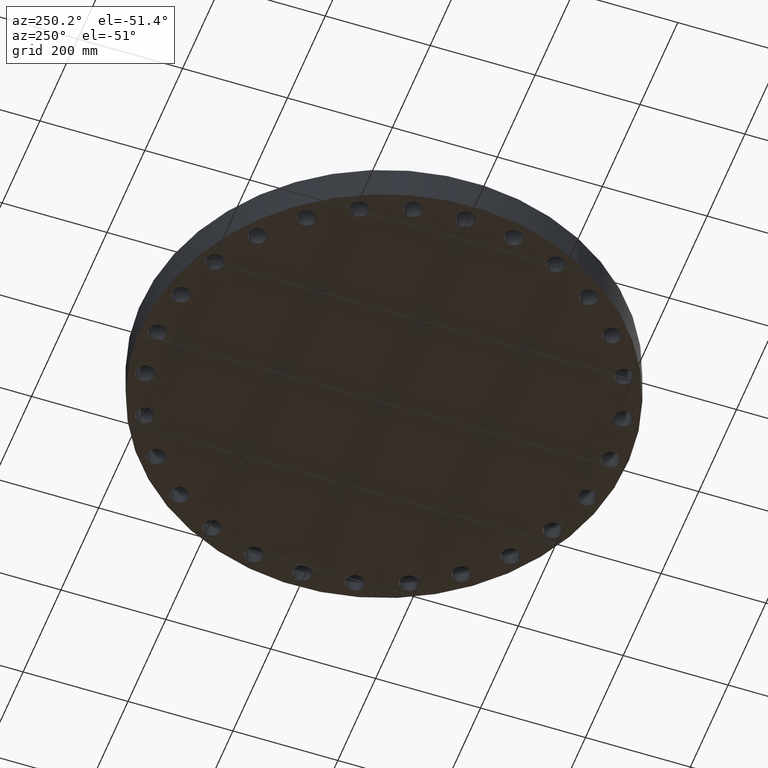
[diagram: clean part render]
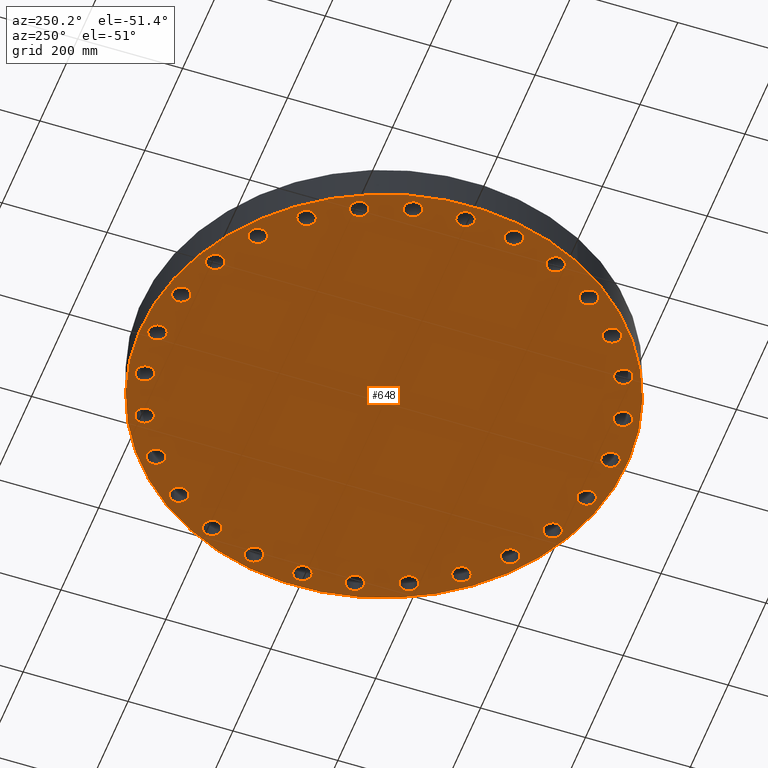
[diagram: same view with one face highlighted and labeled with its STEP entity id]
A machine part, auxiliary view. The second image highlights one B-rep face of the part: STEP entity #648.
In plain terms, the highlighted planar face has unit normal (0, 0, 1).
Its self-contained STEP definition (entity closure, byte-faithful):
#51=AXIS2_PLACEMENT_3D('Circle Axis2P3D',#49,#50,$) ;
#77=AXIS2_PLACEMENT_3D('Circle Axis2P3D',#75,#76,$) ;
#122=AXIS2_PLACEMENT_3D('Circle Axis2P3D',#120,#121,$) ;
#139=AXIS2_PLACEMENT_3D('Circle Axis2P3D',#137,#138,$) ;
#152=AXIS2_PLACEMENT_3D('Plane Axis2P3D',#149,#150,#151) ;
#164=AXIS2_PLACEMENT_3D('Circle Axis2P3D',#162,#163,$) ;
#173=AXIS2_PLACEMENT_3D('Circle Axis2P3D',#171,#172,$) ;
#182=AXIS2_PLACEMENT_3D('Circle Axis2P3D',#180,#181,$) ;
#191=AXIS2_PLACEMENT_3D('Circle Axis2P3D',#189,#190,$) ;
#200=AXIS2_PLACEMENT_3D('Circle Axis2P3D',#198,#199,$) ;
#209=AXIS2_PLACEMENT_3D('Circle Axis2P3D',#207,#208,$) ;
#218=AXIS2_PLACEMENT_3D('Circle Axis2P3D',#216,#217,$) ;
#227=AXIS2_PLACEMENT_3D('Circle Axis2P3D',#225,#226,$) ;
#236=AXIS2_PLACEMENT_3D('Circle Axis2P3D',#234,#235,$) ;
#245=AXIS2_PLACEMENT_3D('Circle Axis2P3D',#243,#244,$) ;
#254=AXIS2_PLACEMENT_3D('Circle Axis2P3D',#252,#253,$) ;
#263=AXIS2_PLACEMENT_3D('Circle Axis2P3D',#261,#262,$) ;
#272=AXIS2_PLACEMENT_3D('Circle Axis2P3D',#270,#271,$) ;
#281=AXIS2_PLACEMENT_3D('Circle Axis2P3D',#279,#280,$) ;
#290=AXIS2_PLACEMENT_3D('Circle Axis2P3D',#288,#289,$) ;
#299=AXIS2_PLACEMENT_3D('Circle Axis2P3D',#297,#298,$) ;
#308=AXIS2_PLACEMENT_3D('Circle Axis2P3D',#306,#307,$) ;
#317=AXIS2_PLACEMENT_3D('Circle Axis2P3D',#315,#316,$) ;
#326=AXIS2_PLACEMENT_3D('Circle Axis2P3D',#324,#325,$) ;
#335=AXIS2_PLACEMENT_3D('Circle Axis2P3D',#333,#334,$) ;
#344=AXIS2_PLACEMENT_3D('Circle Axis2P3D',#342,#343,$) ;
#353=AXIS2_PLACEMENT_3D('Circle Axis2P3D',#351,#352,$) ;
#362=AXIS2_PLACEMENT_3D('Circle Axis2P3D',#360,#361,$) ;
#371=AXIS2_PLACEMENT_3D('Circle Axis2P3D',#369,#370,$) ;
#380=AXIS2_PLACEMENT_3D('Circle Axis2P3D',#378,#379,$) ;
#389=AXIS2_PLACEMENT_3D('Circle Axis2P3D',#387,#388,$) ;
#398=AXIS2_PLACEMENT_3D('Circle Axis2P3D',#396,#397,$) ;
#407=AXIS2_PLACEMENT_3D('Circle Axis2P3D',#405,#406,$) ;
#416=AXIS2_PLACEMENT_3D('Circle Axis2P3D',#414,#415,$) ;
#425=AXIS2_PLACEMENT_3D('Circle Axis2P3D',#423,#424,$) ;
#434=AXIS2_PLACEMENT_3D('Circle Axis2P3D',#432,#433,$) ;
#443=AXIS2_PLACEMENT_3D('Circle Axis2P3D',#441,#442,$) ;
#452=AXIS2_PLACEMENT_3D('Circle Axis2P3D',#450,#451,$) ;
#461=AXIS2_PLACEMENT_3D('Circle Axis2P3D',#459,#460,$) ;
#470=AXIS2_PLACEMENT_3D('Circle Axis2P3D',#468,#469,$) ;
#479=AXIS2_PLACEMENT_3D('Circle Axis2P3D',#477,#478,$) ;
#488=AXIS2_PLACEMENT_3D('Circle Axis2P3D',#486,#487,$) ;
#497=AXIS2_PLACEMENT_3D('Circle Axis2P3D',#495,#496,$) ;
#506=AXIS2_PLACEMENT_3D('Circle Axis2P3D',#504,#505,$) ;
#515=AXIS2_PLACEMENT_3D('Circle Axis2P3D',#513,#514,$) ;
#524=AXIS2_PLACEMENT_3D('Circle Axis2P3D',#522,#523,$) ;
#533=AXIS2_PLACEMENT_3D('Circle Axis2P3D',#531,#532,$) ;
#542=AXIS2_PLACEMENT_3D('Circle Axis2P3D',#540,#541,$) ;
#551=AXIS2_PLACEMENT_3D('Circle Axis2P3D',#549,#550,$) ;
#560=AXIS2_PLACEMENT_3D('Circle Axis2P3D',#558,#559,$) ;
#569=AXIS2_PLACEMENT_3D('Circle Axis2P3D',#567,#568,$) ;
#578=AXIS2_PLACEMENT_3D('Circle Axis2P3D',#576,#577,$) ;
#587=AXIS2_PLACEMENT_3D('Circle Axis2P3D',#585,#586,$) ;
#596=AXIS2_PLACEMENT_3D('Circle Axis2P3D',#594,#595,$) ;
#605=AXIS2_PLACEMENT_3D('Circle Axis2P3D',#603,#604,$) ;
#614=AXIS2_PLACEMENT_3D('Circle Axis2P3D',#612,#613,$) ;
#623=AXIS2_PLACEMENT_3D('Circle Axis2P3D',#621,#622,$) ;
#632=AXIS2_PLACEMENT_3D('Circle Axis2P3D',#630,#631,$) ;
#641=AXIS2_PLACEMENT_3D('Circle Axis2P3D',#639,#640,$) ;
#44=CARTESIAN_POINT('Vertex',(16.3966619888,0.329605057792,0.)) ;
#49=CARTESIAN_POINT('Axis2P3D Location',(17.0000000001,0.,0.)) ;
#53=CARTESIAN_POINT('Vertex',(17.6033380114,-0.329605057792,0.)) ;
#75=CARTESIAN_POINT('Axis2P3D Location',(17.0000000001,0.,0.)) ;
#101=CARTESIAN_POINT('Vertex',(16.0158817546,8.74951607956,0.)) ;
#117=CARTESIAN_POINT('Vertex',(-16.0158817546,-8.74951607956,0.)) ;
#120=CARTESIAN_POINT('Axis2P3D Location',(0.,0.,0.)) ;
#137=CARTESIAN_POINT('Axis2P3D Location',(0.,0.,0.)) ;
#149=CARTESIAN_POINT('Axis2P3D Location',(0.,0.,0.)) ;
#162=CARTESIAN_POINT('Axis2P3D Location',(16.5737745072,3.78285587727,0.)) ;
#166=CARTESIAN_POINT('Vertex',(15.9122194142,3.96994171034,0.)) ;
#168=CARTESIAN_POINT('Vertex',(17.2353296002,3.5957700442,0.)) ;
#171=CARTESIAN_POINT('Axis2P3D Location',(16.5737745072,3.78285587727,0.)) ;
#180=CARTESIAN_POINT('Axis2P3D Location',(15.3164707544,7.37602356503,0.)) ;
#184=CARTESIAN_POINT('Vertex',(14.6298717145,7.41120890851,0.)) ;
#186=CARTESIAN_POINT('Vertex',(16.0030697943,7.34083822155,0.)) ;
#189=CARTESIAN_POINT('Axis2P3D Location',(15.3164707544,7.37602356503,0.)) ;
#198=CARTESIAN_POINT('Axis2P3D Location',(13.291135202,10.5993266316,0.)) ;
#202=CARTESIAN_POINT('Vertex',(12.613921158,10.4808471455,0.)) ;
#204=CARTESIAN_POINT('Vertex',(13.968349246,10.7178061178,0.)) ;
#207=CARTESIAN_POINT('Axis2P3D Location',(13.291135202,10.5993266316,0.)) ;
#216=CARTESIAN_POINT('Axis2P3D Location',(10.5993266316,13.291135202,0.)) ;
#220=CARTESIAN_POINT('Vertex',(9.96545592356,13.0249319424,0.)) ;
#222=CARTESIAN_POINT('Vertex',(11.2331973397,13.5573384616,0.)) ;
#225=CARTESIAN_POINT('Axis2P3D Location',(10.5993266316,13.291135202,0.)) ;
#234=CARTESIAN_POINT('Axis2P3D Location',(7.37602356503,15.3164707544,0.)) ;
#238=CARTESIAN_POINT('Vertex',(6.81728111696,14.9158922643,0.)) ;
#240=CARTESIAN_POINT('Vertex',(7.9347660131,15.7170492445,0.)) ;
#243=CARTESIAN_POINT('Axis2P3D Location',(7.37602356503,15.3164707544,0.)) ;
#252=CARTESIAN_POINT('Axis2P3D Location',(3.78285587727,16.5737745072,0.)) ;
#256=CARTESIAN_POINT('Vertex',(3.32725936867,16.0589074648,0.)) ;
#258=CARTESIAN_POINT('Vertex',(4.23845238588,17.0886415496,0.)) ;
#261=CARTESIAN_POINT('Axis2P3D Location',(3.78285587727,16.5737745072,0.)) ;
#270=CARTESIAN_POINT('Axis2P3D Location',(2.30786518505E-015,17.0000000001,0.)) ;
#274=CARTESIAN_POINT('Vertex',(-0.329605057792,16.3966619888,0.)) ;
#276=CARTESIAN_POINT('Vertex',(0.329605057792,17.6033380114,0.)) ;
#279=CARTESIAN_POINT('Axis2P3D Location',(3.35689481461E-015,17.0000000001,0.)) ;
#288=CARTESIAN_POINT('Axis2P3D Location',(-3.78285587727,16.5737745072,0.)) ;
#292=CARTESIAN_POINT('Vertex',(-3.96994171034,15.9122194142,0.)) ;
#294=CARTESIAN_POINT('Vertex',(-3.5957700442,17.2353296002,0.)) ;
#297=CARTESIAN_POINT('Axis2P3D Location',(-3.78285587727,16.5737745072,0.)) ;
#306=CARTESIAN_POINT('Axis2P3D Location',(-7.37602356503,15.3164707544,0.)) ;
#310=CARTESIAN_POINT('Vertex',(-7.41120890851,14.6298717145,0.)) ;
#312=CARTESIAN_POINT('Vertex',(-7.34083822155,16.0030697943,0.)) ;
#315=CARTESIAN_POINT('Axis2P3D Location',(-7.37602356503,15.3164707544,0.)) ;
#324=CARTESIAN_POINT('Axis2P3D Location',(-10.5993266316,13.291135202,0.)) ;
#328=CARTESIAN_POINT('Vertex',(-10.4808471455,12.613921158,0.)) ;
#330=CARTESIAN_POINT('Vertex',(-10.7178061178,13.968349246,0.)) ;
#333=CARTESIAN_POINT('Axis2P3D Location',(-10.5993266316,13.291135202,0.)) ;
#342=CARTESIAN_POINT('Axis2P3D Location',(-13.291135202,10.5993266316,0.)) ;
#346=CARTESIAN_POINT('Vertex',(-13.0249319424,9.96545592356,0.)) ;
#348=CARTESIAN_POINT('Vertex',(-13.5573384616,11.2331973397,0.)) ;
#351=CARTESIAN_POINT('Axis2P3D Location',(-13.291135202,10.5993266316,0.)) ;
#360=CARTESIAN_POINT('Axis2P3D Location',(-15.3164707544,7.37602356503,0.)) ;
#364=CARTESIAN_POINT('Vertex',(-14.9158922643,6.81728111696,0.)) ;
#366=CARTESIAN_POINT('Vertex',(-15.7170492445,7.9347660131,0.)) ;
#369=CARTESIAN_POINT('Axis2P3D Location',(-15.3164707544,7.37602356503,0.)) ;
#378=CARTESIAN_POINT('Axis2P3D Location',(-16.5737745072,3.78285587727,0.)) ;
#382=CARTESIAN_POINT('Vertex',(-16.0589074648,3.32725936867,0.)) ;
#384=CARTESIAN_POINT('Vertex',(-17.0886415496,4.23845238588,0.)) ;
#387=CARTESIAN_POINT('Axis2P3D Location',(-16.5737745072,3.78285587727,0.)) ;
#396=CARTESIAN_POINT('Axis2P3D Location',(-17.0000000001,8.74191357973E-015,0.)) ;
#400=CARTESIAN_POINT('Vertex',(-16.3966619888,-0.329605057792,0.)) ;
#402=CARTESIAN_POINT('Vertex',(-17.6033380114,0.329605057792,0.)) ;
#405=CARTESIAN_POINT('Axis2P3D Location',(-17.0000000001,1.07700375302E-014,0.)) ;
#414=CARTESIAN_POINT('Axis2P3D Location',(-16.5737745072,-3.78285587727,0.)) ;
#418=CARTESIAN_POINT('Vertex',(-15.9122194142,-3.96994171034,0.)) ;
#420=CARTESIAN_POINT('Vertex',(-17.2353296002,-3.5957700442,0.)) ;
#423=CARTESIAN_POINT('Axis2P3D Location',(-16.5737745072,-3.78285587727,0.)) ;
#432=CARTESIAN_POINT('Axis2P3D Location',(-15.3164707544,-7.37602356503,0.)) ;
#436=CARTESIAN_POINT('Vertex',(-14.6298717145,-7.41120890851,0.)) ;
#438=CARTESIAN_POINT('Vertex',(-16.0030697943,-7.34083822155,0.)) ;
#441=CARTESIAN_POINT('Axis2P3D Location',(-15.3164707544,-7.37602356503,0.)) ;
#450=CARTESIAN_POINT('Axis2P3D Location',(-13.291135202,-10.5993266316,0.)) ;
#454=CARTESIAN_POINT('Vertex',(-12.613921158,-10.4808471455,0.)) ;
#456=CARTESIAN_POINT('Vertex',(-13.968349246,-10.7178061178,0.)) ;
#459=CARTESIAN_POINT('Axis2P3D Location',(-13.291135202,-10.5993266316,0.)) ;
#468=CARTESIAN_POINT('Axis2P3D Location',(-10.5993266316,-13.291135202,0.)) ;
#472=CARTESIAN_POINT('Vertex',(-9.96545592356,-13.0249319424,0.)) ;
#474=CARTESIAN_POINT('Vertex',(-11.2331973397,-13.5573384616,0.)) ;
#477=CARTESIAN_POINT('Axis2P3D Location',(-10.5993266316,-13.291135202,0.)) ;
#486=CARTESIAN_POINT('Axis2P3D Location',(-7.37602356503,-15.3164707544,0.)) ;
#490=CARTESIAN_POINT('Vertex',(-6.81728111696,-14.9158922643,0.)) ;
#492=CARTESIAN_POINT('Vertex',(-7.9347660131,-15.7170492445,0.)) ;
#495=CARTESIAN_POINT('Axis2P3D Location',(-7.37602356503,-15.3164707544,0.)) ;
#504=CARTESIAN_POINT('Axis2P3D Location',(-3.78285587727,-16.5737745072,0.)) ;
#508=CARTESIAN_POINT('Vertex',(-3.32725936867,-16.0589074648,0.)) ;
#510=CARTESIAN_POINT('Vertex',(-4.23845238588,-17.0886415496,0.)) ;
#513=CARTESIAN_POINT('Axis2P3D Location',(-3.78285587727,-16.5737745072,0.)) ;
#522=CARTESIAN_POINT('Axis2P3D Location',(-6.2941777774E-016,-17.0000000001,0.)) ;
#526=CARTESIAN_POINT('Vertex',(0.329605057792,-16.3966619888,0.)) ;
#528=CARTESIAN_POINT('Vertex',(-0.329605057792,-17.6033380114,0.)) ;
#531=CARTESIAN_POINT('Axis2P3D Location',(-1.74838271595E-015,-17.0000000001,0.)) ;
#540=CARTESIAN_POINT('Axis2P3D Location',(3.78285587727,-16.5737745072,0.)) ;
#544=CARTESIAN_POINT('Vertex',(3.96994171034,-15.9122194142,0.)) ;
#546=CARTESIAN_POINT('Vertex',(3.5957700442,-17.2353296002,0.)) ;
#549=CARTESIAN_POINT('Axis2P3D Location',(3.78285587727,-16.5737745072,0.)) ;
#558=CARTESIAN_POINT('Axis2P3D Location',(7.37602356503,-15.3164707544,0.)) ;
#562=CARTESIAN_POINT('Vertex',(7.41120890851,-14.6298717145,0.)) ;
#564=CARTESIAN_POINT('Vertex',(7.34083822155,-16.0030697943,0.)) ;
#567=CARTESIAN_POINT('Axis2P3D Location',(7.37602356503,-15.3164707544,0.)) ;
#576=CARTESIAN_POINT('Axis2P3D Location',(10.5993266316,-13.291135202,0.)) ;
#580=CARTESIAN_POINT('Vertex',(10.4808471455,-12.613921158,0.)) ;
#582=CARTESIAN_POINT('Vertex',(10.7178061178,-13.968349246,0.)) ;
#585=CARTESIAN_POINT('Axis2P3D Location',(10.5993266316,-13.291135202,0.)) ;
#594=CARTESIAN_POINT('Axis2P3D Location',(13.291135202,-10.5993266316,0.)) ;
#598=CARTESIAN_POINT('Vertex',(13.0249319424,-9.96545592356,0.)) ;
#600=CARTESIAN_POINT('Vertex',(13.5573384616,-11.2331973397,0.)) ;
#603=CARTESIAN_POINT('Axis2P3D Location',(13.291135202,-10.5993266316,0.)) ;
#612=CARTESIAN_POINT('Axis2P3D Location',(15.3164707544,-7.37602356503,0.)) ;
#616=CARTESIAN_POINT('Vertex',(14.9158922643,-6.81728111696,0.)) ;
#618=CARTESIAN_POINT('Vertex',(15.7170492445,-7.9347660131,0.)) ;
#621=CARTESIAN_POINT('Axis2P3D Location',(15.3164707544,-7.37602356503,0.)) ;
#630=CARTESIAN_POINT('Axis2P3D Location',(16.5737745072,-3.78285587727,0.)) ;
#634=CARTESIAN_POINT('Vertex',(16.0589074648,-3.32725936867,0.)) ;
#636=CARTESIAN_POINT('Vertex',(17.0886415496,-4.23845238588,0.)) ;
#639=CARTESIAN_POINT('Axis2P3D Location',(16.5737745072,-3.78285587727,0.)) ;
#50=DIRECTION('Axis2P3D Direction',(0.,-0.,-0.0393700787402)) ;
#76=DIRECTION('Axis2P3D Direction',(0.,-0.,-0.0393700787402)) ;
#121=DIRECTION('Axis2P3D Direction',(0.,0.,0.0393700787402)) ;
#138=DIRECTION('Axis2P3D Direction',(0.,0.,0.0393700787402)) ;
#150=DIRECTION('Axis2P3D Direction',(0.,0.,0.0393700787402)) ;
#151=DIRECTION('Axis2P3D XDirection',(0.0393700787402,0.,0.)) ;
#163=DIRECTION('Axis2P3D Direction',(0.,0.,0.0393700787402)) ;
#172=DIRECTION('Axis2P3D Direction',(0.,0.,0.0393700787402)) ;
#181=DIRECTION('Axis2P3D Direction',(0.,0.,0.0393700787402)) ;
#190=DIRECTION('Axis2P3D Direction',(0.,0.,0.0393700787402)) ;
#199=DIRECTION('Axis2P3D Direction',(0.,0.,0.0393700787402)) ;
#208=DIRECTION('Axis2P3D Direction',(0.,0.,0.0393700787402)) ;
#217=DIRECTION('Axis2P3D Direction',(0.,0.,0.0393700787402)) ;
#226=DIRECTION('Axis2P3D Direction',(0.,0.,0.0393700787402)) ;
#235=DIRECTION('Axis2P3D Direction',(0.,0.,0.0393700787402)) ;
#244=DIRECTION('Axis2P3D Direction',(0.,0.,0.0393700787402)) ;
#253=DIRECTION('Axis2P3D Direction',(0.,0.,0.0393700787402)) ;
#262=DIRECTION('Axis2P3D Direction',(0.,0.,0.0393700787402)) ;
#271=DIRECTION('Axis2P3D Direction',(0.,0.,0.0393700787402)) ;
#280=DIRECTION('Axis2P3D Direction',(0.,0.,0.0393700787402)) ;
#289=DIRECTION('Axis2P3D Direction',(0.,0.,0.0393700787402)) ;
#298=DIRECTION('Axis2P3D Direction',(0.,0.,0.0393700787402)) ;
#307=DIRECTION('Axis2P3D Direction',(0.,0.,0.0393700787402)) ;
#316=DIRECTION('Axis2P3D Direction',(0.,0.,0.0393700787402)) ;
#325=DIRECTION('Axis2P3D Direction',(0.,0.,0.0393700787402)) ;
#334=DIRECTION('Axis2P3D Direction',(0.,0.,0.0393700787402)) ;
#343=DIRECTION('Axis2P3D Direction',(0.,0.,0.0393700787402)) ;
#352=DIRECTION('Axis2P3D Direction',(0.,0.,0.0393700787402)) ;
#361=DIRECTION('Axis2P3D Direction',(0.,0.,0.0393700787402)) ;
#370=DIRECTION('Axis2P3D Direction',(0.,0.,0.0393700787402)) ;
#379=DIRECTION('Axis2P3D Direction',(0.,0.,0.0393700787402)) ;
#388=DIRECTION('Axis2P3D Direction',(0.,0.,0.0393700787402)) ;
#397=DIRECTION('Axis2P3D Direction',(0.,0.,0.0393700787402)) ;
#406=DIRECTION('Axis2P3D Direction',(0.,0.,0.0393700787402)) ;
#415=DIRECTION('Axis2P3D Direction',(0.,0.,0.0393700787402)) ;
#424=DIRECTION('Axis2P3D Direction',(0.,0.,0.0393700787402)) ;
#433=DIRECTION('Axis2P3D Direction',(0.,0.,0.0393700787402)) ;
#442=DIRECTION('Axis2P3D Direction',(0.,0.,0.0393700787402)) ;
#451=DIRECTION('Axis2P3D Direction',(0.,0.,0.0393700787402)) ;
#460=DIRECTION('Axis2P3D Direction',(0.,0.,0.0393700787402)) ;
#469=DIRECTION('Axis2P3D Direction',(0.,0.,0.0393700787402)) ;
#478=DIRECTION('Axis2P3D Direction',(0.,0.,0.0393700787402)) ;
#487=DIRECTION('Axis2P3D Direction',(0.,0.,0.0393700787402)) ;
#496=DIRECTION('Axis2P3D Direction',(0.,0.,0.0393700787402)) ;
#505=DIRECTION('Axis2P3D Direction',(0.,0.,0.0393700787402)) ;
#514=DIRECTION('Axis2P3D Direction',(0.,0.,0.0393700787402)) ;
#523=DIRECTION('Axis2P3D Direction',(0.,0.,0.0393700787402)) ;
#532=DIRECTION('Axis2P3D Direction',(0.,0.,0.0393700787402)) ;
#541=DIRECTION('Axis2P3D Direction',(0.,0.,0.0393700787402)) ;
#550=DIRECTION('Axis2P3D Direction',(0.,0.,0.0393700787402)) ;
#559=DIRECTION('Axis2P3D Direction',(0.,0.,0.0393700787402)) ;
#568=DIRECTION('Axis2P3D Direction',(0.,0.,0.0393700787402)) ;
#577=DIRECTION('Axis2P3D Direction',(0.,0.,0.0393700787402)) ;
#586=DIRECTION('Axis2P3D Direction',(0.,0.,0.0393700787402)) ;
#595=DIRECTION('Axis2P3D Direction',(0.,0.,0.0393700787402)) ;
#604=DIRECTION('Axis2P3D Direction',(0.,0.,0.0393700787402)) ;
#613=DIRECTION('Axis2P3D Direction',(0.,0.,0.0393700787402)) ;
#622=DIRECTION('Axis2P3D Direction',(0.,0.,0.0393700787402)) ;
#631=DIRECTION('Axis2P3D Direction',(0.,0.,0.0393700787402)) ;
#640=DIRECTION('Axis2P3D Direction',(0.,0.,0.0393700787402)) ;
#155=ORIENTED_EDGE('',*,*,#124,.F.) ;
#156=ORIENTED_EDGE('',*,*,#141,.F.) ;
#159=ORIENTED_EDGE('',*,*,#55,.T.) ;
#160=ORIENTED_EDGE('',*,*,#79,.T.) ;
#177=ORIENTED_EDGE('',*,*,#170,.T.) ;
#178=ORIENTED_EDGE('',*,*,#175,.T.) ;
#195=ORIENTED_EDGE('',*,*,#188,.T.) ;
#196=ORIENTED_EDGE('',*,*,#193,.T.) ;
#213=ORIENTED_EDGE('',*,*,#206,.T.) ;
#214=ORIENTED_EDGE('',*,*,#211,.T.) ;
#231=ORIENTED_EDGE('',*,*,#224,.T.) ;
#232=ORIENTED_EDGE('',*,*,#229,.T.) ;
#249=ORIENTED_EDGE('',*,*,#242,.T.) ;
#250=ORIENTED_EDGE('',*,*,#247,.T.) ;
#267=ORIENTED_EDGE('',*,*,#260,.T.) ;
#268=ORIENTED_EDGE('',*,*,#265,.T.) ;
#285=ORIENTED_EDGE('',*,*,#278,.T.) ;
#286=ORIENTED_EDGE('',*,*,#283,.T.) ;
#303=ORIENTED_EDGE('',*,*,#296,.T.) ;
#304=ORIENTED_EDGE('',*,*,#301,.T.) ;
#321=ORIENTED_EDGE('',*,*,#314,.T.) ;
#322=ORIENTED_EDGE('',*,*,#319,.T.) ;
#339=ORIENTED_EDGE('',*,*,#332,.T.) ;
#340=ORIENTED_EDGE('',*,*,#337,.T.) ;
#357=ORIENTED_EDGE('',*,*,#350,.T.) ;
#358=ORIENTED_EDGE('',*,*,#355,.T.) ;
#375=ORIENTED_EDGE('',*,*,#368,.T.) ;
#376=ORIENTED_EDGE('',*,*,#373,.T.) ;
#393=ORIENTED_EDGE('',*,*,#386,.T.) ;
#394=ORIENTED_EDGE('',*,*,#391,.T.) ;
#411=ORIENTED_EDGE('',*,*,#404,.T.) ;
#412=ORIENTED_EDGE('',*,*,#409,.T.) ;
#429=ORIENTED_EDGE('',*,*,#422,.T.) ;
#430=ORIENTED_EDGE('',*,*,#427,.T.) ;
#447=ORIENTED_EDGE('',*,*,#440,.T.) ;
#448=ORIENTED_EDGE('',*,*,#445,.T.) ;
#465=ORIENTED_EDGE('',*,*,#458,.T.) ;
#466=ORIENTED_EDGE('',*,*,#463,.T.) ;
#483=ORIENTED_EDGE('',*,*,#476,.T.) ;
#484=ORIENTED_EDGE('',*,*,#481,.T.) ;
#501=ORIENTED_EDGE('',*,*,#494,.T.) ;
#502=ORIENTED_EDGE('',*,*,#499,.T.) ;
#519=ORIENTED_EDGE('',*,*,#512,.T.) ;
#520=ORIENTED_EDGE('',*,*,#517,.T.) ;
#537=ORIENTED_EDGE('',*,*,#530,.T.) ;
#538=ORIENTED_EDGE('',*,*,#535,.T.) ;
#555=ORIENTED_EDGE('',*,*,#548,.T.) ;
#556=ORIENTED_EDGE('',*,*,#553,.T.) ;
#573=ORIENTED_EDGE('',*,*,#566,.T.) ;
#574=ORIENTED_EDGE('',*,*,#571,.T.) ;
#591=ORIENTED_EDGE('',*,*,#584,.T.) ;
#592=ORIENTED_EDGE('',*,*,#589,.T.) ;
#609=ORIENTED_EDGE('',*,*,#602,.T.) ;
#610=ORIENTED_EDGE('',*,*,#607,.T.) ;
#627=ORIENTED_EDGE('',*,*,#620,.T.) ;
#628=ORIENTED_EDGE('',*,*,#625,.T.) ;
#645=ORIENTED_EDGE('',*,*,#638,.T.) ;
#646=ORIENTED_EDGE('',*,*,#643,.T.) ;
#161=FACE_BOUND('',#158,.T.) ;
#179=FACE_BOUND('',#176,.T.) ;
#197=FACE_BOUND('',#194,.T.) ;
#215=FACE_BOUND('',#212,.T.) ;
#233=FACE_BOUND('',#230,.T.) ;
#251=FACE_BOUND('',#248,.T.) ;
#269=FACE_BOUND('',#266,.T.) ;
#287=FACE_BOUND('',#284,.T.) ;
#305=FACE_BOUND('',#302,.T.) ;
#323=FACE_BOUND('',#320,.T.) ;
#341=FACE_BOUND('',#338,.T.) ;
#359=FACE_BOUND('',#356,.T.) ;
#377=FACE_BOUND('',#374,.T.) ;
#395=FACE_BOUND('',#392,.T.) ;
#413=FACE_BOUND('',#410,.T.) ;
#431=FACE_BOUND('',#428,.T.) ;
#449=FACE_BOUND('',#446,.T.) ;
#467=FACE_BOUND('',#464,.T.) ;
#485=FACE_BOUND('',#482,.T.) ;
#503=FACE_BOUND('',#500,.T.) ;
#521=FACE_BOUND('',#518,.T.) ;
#539=FACE_BOUND('',#536,.T.) ;
#557=FACE_BOUND('',#554,.T.) ;
#575=FACE_BOUND('',#572,.T.) ;
#593=FACE_BOUND('',#590,.T.) ;
#611=FACE_BOUND('',#608,.T.) ;
#629=FACE_BOUND('',#626,.T.) ;
#647=FACE_BOUND('',#644,.T.) ;
#648=ADVANCED_FACE('PartBody',(#157,#161,#179,#197,#215,#233,#251,#269,#287,#305,#323,#341,#359,#377,#395,#413,#431,#449,#467,#485,#503,#521,#539,#557,#575,#593,#611,#629,#647),#153,.F.) ;
#52=CIRCLE('generated circle',#51,0.687500000003) ;
#78=CIRCLE('generated circle',#77,0.687500000003) ;
#123=CIRCLE('generated circle',#122,18.2500000001) ;
#140=CIRCLE('generated circle',#139,18.2500000001) ;
#165=CIRCLE('generated circle',#164,0.687500000003) ;
#174=CIRCLE('generated circle',#173,0.687500000003) ;
#183=CIRCLE('generated circle',#182,0.687500000003) ;
#192=CIRCLE('generated circle',#191,0.687500000003) ;
#201=CIRCLE('generated circle',#200,0.687500000003) ;
#210=CIRCLE('generated circle',#209,0.687500000003) ;
#219=CIRCLE('generated circle',#218,0.687500000003) ;
#228=CIRCLE('generated circle',#227,0.687500000003) ;
#237=CIRCLE('generated circle',#236,0.687500000003) ;
#246=CIRCLE('generated circle',#245,0.687500000003) ;
#255=CIRCLE('generated circle',#254,0.687500000003) ;
#264=CIRCLE('generated circle',#263,0.687500000003) ;
#273=CIRCLE('generated circle',#272,0.687500000003) ;
#282=CIRCLE('generated circle',#281,0.687500000003) ;
#291=CIRCLE('generated circle',#290,0.687500000003) ;
#300=CIRCLE('generated circle',#299,0.687500000003) ;
#309=CIRCLE('generated circle',#308,0.687500000003) ;
#318=CIRCLE('generated circle',#317,0.687500000003) ;
#327=CIRCLE('generated circle',#326,0.687500000003) ;
#336=CIRCLE('generated circle',#335,0.687500000003) ;
#345=CIRCLE('generated circle',#344,0.687500000003) ;
#354=CIRCLE('generated circle',#353,0.687500000003) ;
#363=CIRCLE('generated circle',#362,0.687500000003) ;
#372=CIRCLE('generated circle',#371,0.687500000003) ;
#381=CIRCLE('generated circle',#380,0.687500000003) ;
#390=CIRCLE('generated circle',#389,0.687500000003) ;
#399=CIRCLE('generated circle',#398,0.687500000003) ;
#408=CIRCLE('generated circle',#407,0.687500000003) ;
#417=CIRCLE('generated circle',#416,0.687500000003) ;
#426=CIRCLE('generated circle',#425,0.687500000003) ;
#435=CIRCLE('generated circle',#434,0.687500000003) ;
#444=CIRCLE('generated circle',#443,0.687500000003) ;
#453=CIRCLE('generated circle',#452,0.687500000003) ;
#462=CIRCLE('generated circle',#461,0.687500000003) ;
#471=CIRCLE('generated circle',#470,0.687500000003) ;
#480=CIRCLE('generated circle',#479,0.687500000003) ;
#489=CIRCLE('generated circle',#488,0.687500000003) ;
#498=CIRCLE('generated circle',#497,0.687500000003) ;
#507=CIRCLE('generated circle',#506,0.687500000003) ;
#516=CIRCLE('generated circle',#515,0.687500000003) ;
#525=CIRCLE('generated circle',#524,0.687500000003) ;
#534=CIRCLE('generated circle',#533,0.687500000003) ;
#543=CIRCLE('generated circle',#542,0.687500000003) ;
#552=CIRCLE('generated circle',#551,0.687500000003) ;
#561=CIRCLE('generated circle',#560,0.687500000003) ;
#570=CIRCLE('generated circle',#569,0.687500000003) ;
#579=CIRCLE('generated circle',#578,0.687500000003) ;
#588=CIRCLE('generated circle',#587,0.687500000003) ;
#597=CIRCLE('generated circle',#596,0.687500000003) ;
#606=CIRCLE('generated circle',#605,0.687500000003) ;
#615=CIRCLE('generated circle',#614,0.687500000003) ;
#624=CIRCLE('generated circle',#623,0.687500000003) ;
#633=CIRCLE('generated circle',#632,0.687500000003) ;
#642=CIRCLE('generated circle',#641,0.687500000003) ;
#55=EDGE_CURVE('',#54,#45,#52,.F.) ;
#79=EDGE_CURVE('',#45,#54,#78,.F.) ;
#124=EDGE_CURVE('',#118,#102,#123,.T.) ;
#141=EDGE_CURVE('',#102,#118,#140,.T.) ;
#170=EDGE_CURVE('',#167,#169,#165,.T.) ;
#175=EDGE_CURVE('',#169,#167,#174,.T.) ;
#188=EDGE_CURVE('',#185,#187,#183,.T.) ;
#193=EDGE_CURVE('',#187,#185,#192,.T.) ;
#206=EDGE_CURVE('',#203,#205,#201,.T.) ;
#211=EDGE_CURVE('',#205,#203,#210,.T.) ;
#224=EDGE_CURVE('',#221,#223,#219,.T.) ;
#229=EDGE_CURVE('',#223,#221,#228,.T.) ;
#242=EDGE_CURVE('',#239,#241,#237,.T.) ;
#247=EDGE_CURVE('',#241,#239,#246,.T.) ;
#260=EDGE_CURVE('',#257,#259,#255,.T.) ;
#265=EDGE_CURVE('',#259,#257,#264,.T.) ;
#278=EDGE_CURVE('',#275,#277,#273,.T.) ;
#283=EDGE_CURVE('',#277,#275,#282,.T.) ;
#296=EDGE_CURVE('',#293,#295,#291,.T.) ;
#301=EDGE_CURVE('',#295,#293,#300,.T.) ;
#314=EDGE_CURVE('',#311,#313,#309,.T.) ;
#319=EDGE_CURVE('',#313,#311,#318,.T.) ;
#332=EDGE_CURVE('',#329,#331,#327,.T.) ;
#337=EDGE_CURVE('',#331,#329,#336,.T.) ;
#350=EDGE_CURVE('',#347,#349,#345,.T.) ;
#355=EDGE_CURVE('',#349,#347,#354,.T.) ;
#368=EDGE_CURVE('',#365,#367,#363,.T.) ;
#373=EDGE_CURVE('',#367,#365,#372,.T.) ;
#386=EDGE_CURVE('',#383,#385,#381,.T.) ;
#391=EDGE_CURVE('',#385,#383,#390,.T.) ;
#404=EDGE_CURVE('',#401,#403,#399,.T.) ;
#409=EDGE_CURVE('',#403,#401,#408,.T.) ;
#422=EDGE_CURVE('',#419,#421,#417,.T.) ;
#427=EDGE_CURVE('',#421,#419,#426,.T.) ;
#440=EDGE_CURVE('',#437,#439,#435,.T.) ;
#445=EDGE_CURVE('',#439,#437,#444,.T.) ;
#458=EDGE_CURVE('',#455,#457,#453,.T.) ;
#463=EDGE_CURVE('',#457,#455,#462,.T.) ;
#476=EDGE_CURVE('',#473,#475,#471,.T.) ;
#481=EDGE_CURVE('',#475,#473,#480,.T.) ;
#494=EDGE_CURVE('',#491,#493,#489,.T.) ;
#499=EDGE_CURVE('',#493,#491,#498,.T.) ;
#512=EDGE_CURVE('',#509,#511,#507,.T.) ;
#517=EDGE_CURVE('',#511,#509,#516,.T.) ;
#530=EDGE_CURVE('',#527,#529,#525,.T.) ;
#535=EDGE_CURVE('',#529,#527,#534,.T.) ;
#548=EDGE_CURVE('',#545,#547,#543,.T.) ;
#553=EDGE_CURVE('',#547,#545,#552,.T.) ;
#566=EDGE_CURVE('',#563,#565,#561,.T.) ;
#571=EDGE_CURVE('',#565,#563,#570,.T.) ;
#584=EDGE_CURVE('',#581,#583,#579,.T.) ;
#589=EDGE_CURVE('',#583,#581,#588,.T.) ;
#602=EDGE_CURVE('',#599,#601,#597,.T.) ;
#607=EDGE_CURVE('',#601,#599,#606,.T.) ;
#620=EDGE_CURVE('',#617,#619,#615,.T.) ;
#625=EDGE_CURVE('',#619,#617,#624,.T.) ;
#638=EDGE_CURVE('',#635,#637,#633,.T.) ;
#643=EDGE_CURVE('',#637,#635,#642,.T.) ;
#154=EDGE_LOOP('',(#155,#156)) ;
#158=EDGE_LOOP('',(#159,#160)) ;
#176=EDGE_LOOP('',(#177,#178)) ;
#194=EDGE_LOOP('',(#195,#196)) ;
#212=EDGE_LOOP('',(#213,#214)) ;
#230=EDGE_LOOP('',(#231,#232)) ;
#248=EDGE_LOOP('',(#249,#250)) ;
#266=EDGE_LOOP('',(#267,#268)) ;
#284=EDGE_LOOP('',(#285,#286)) ;
#302=EDGE_LOOP('',(#303,#304)) ;
#320=EDGE_LOOP('',(#321,#322)) ;
#338=EDGE_LOOP('',(#339,#340)) ;
#356=EDGE_LOOP('',(#357,#358)) ;
#374=EDGE_LOOP('',(#375,#376)) ;
#392=EDGE_LOOP('',(#393,#394)) ;
#410=EDGE_LOOP('',(#411,#412)) ;
#428=EDGE_LOOP('',(#429,#430)) ;
#446=EDGE_LOOP('',(#447,#448)) ;
#464=EDGE_LOOP('',(#465,#466)) ;
#482=EDGE_LOOP('',(#483,#484)) ;
#500=EDGE_LOOP('',(#501,#502)) ;
#518=EDGE_LOOP('',(#519,#520)) ;
#536=EDGE_LOOP('',(#537,#538)) ;
#554=EDGE_LOOP('',(#555,#556)) ;
#572=EDGE_LOOP('',(#573,#574)) ;
#590=EDGE_LOOP('',(#591,#592)) ;
#608=EDGE_LOOP('',(#609,#610)) ;
#626=EDGE_LOOP('',(#627,#628)) ;
#644=EDGE_LOOP('',(#645,#646)) ;
#157=FACE_OUTER_BOUND('',#154,.T.) ;
#153=PLANE('',#152) ;
#45=VERTEX_POINT('',#44) ;
#54=VERTEX_POINT('',#53) ;
#102=VERTEX_POINT('',#101) ;
#118=VERTEX_POINT('',#117) ;
#167=VERTEX_POINT('',#166) ;
#169=VERTEX_POINT('',#168) ;
#185=VERTEX_POINT('',#184) ;
#187=VERTEX_POINT('',#186) ;
#203=VERTEX_POINT('',#202) ;
#205=VERTEX_POINT('',#204) ;
#221=VERTEX_POINT('',#220) ;
#223=VERTEX_POINT('',#222) ;
#239=VERTEX_POINT('',#238) ;
#241=VERTEX_POINT('',#240) ;
#257=VERTEX_POINT('',#256) ;
#259=VERTEX_POINT('',#258) ;
#275=VERTEX_POINT('',#274) ;
#277=VERTEX_POINT('',#276) ;
#293=VERTEX_POINT('',#292) ;
#295=VERTEX_POINT('',#294) ;
#311=VERTEX_POINT('',#310) ;
#313=VERTEX_POINT('',#312) ;
#329=VERTEX_POINT('',#328) ;
#331=VERTEX_POINT('',#330) ;
#347=VERTEX_POINT('',#346) ;
#349=VERTEX_POINT('',#348) ;
#365=VERTEX_POINT('',#364) ;
#367=VERTEX_POINT('',#366) ;
#383=VERTEX_POINT('',#382) ;
#385=VERTEX_POINT('',#384) ;
#401=VERTEX_POINT('',#400) ;
#403=VERTEX_POINT('',#402) ;
#419=VERTEX_POINT('',#418) ;
#421=VERTEX_POINT('',#420) ;
#437=VERTEX_POINT('',#436) ;
#439=VERTEX_POINT('',#438) ;
#455=VERTEX_POINT('',#454) ;
#457=VERTEX_POINT('',#456) ;
#473=VERTEX_POINT('',#472) ;
#475=VERTEX_POINT('',#474) ;
#491=VERTEX_POINT('',#490) ;
#493=VERTEX_POINT('',#492) ;
#509=VERTEX_POINT('',#508) ;
#511=VERTEX_POINT('',#510) ;
#527=VERTEX_POINT('',#526) ;
#529=VERTEX_POINT('',#528) ;
#545=VERTEX_POINT('',#544) ;
#547=VERTEX_POINT('',#546) ;
#563=VERTEX_POINT('',#562) ;
#565=VERTEX_POINT('',#564) ;
#581=VERTEX_POINT('',#580) ;
#583=VERTEX_POINT('',#582) ;
#599=VERTEX_POINT('',#598) ;
#601=VERTEX_POINT('',#600) ;
#617=VERTEX_POINT('',#616) ;
#619=VERTEX_POINT('',#618) ;
#635=VERTEX_POINT('',#634) ;
#637=VERTEX_POINT('',#636) ;